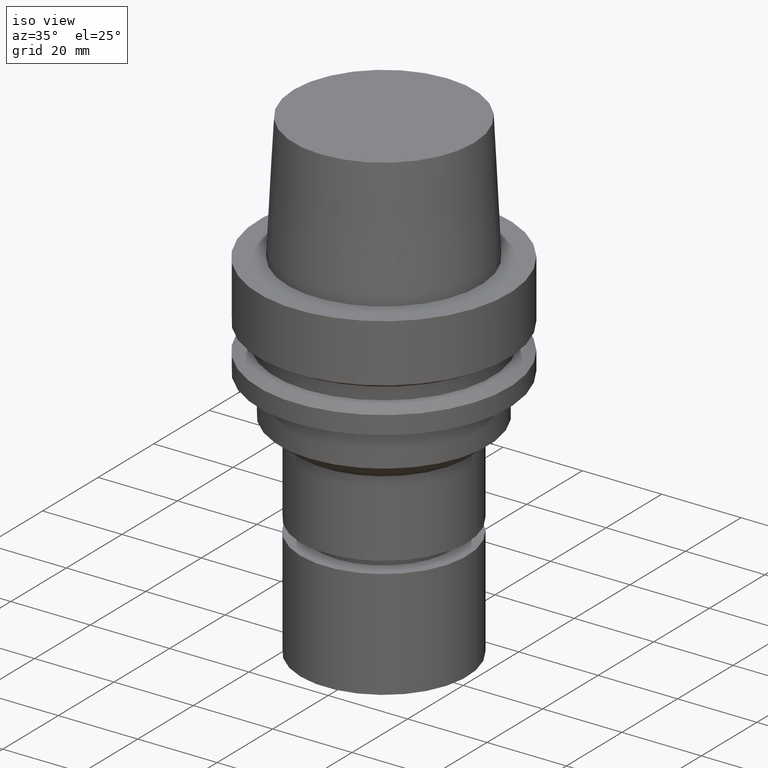
[diagram: clean part render]
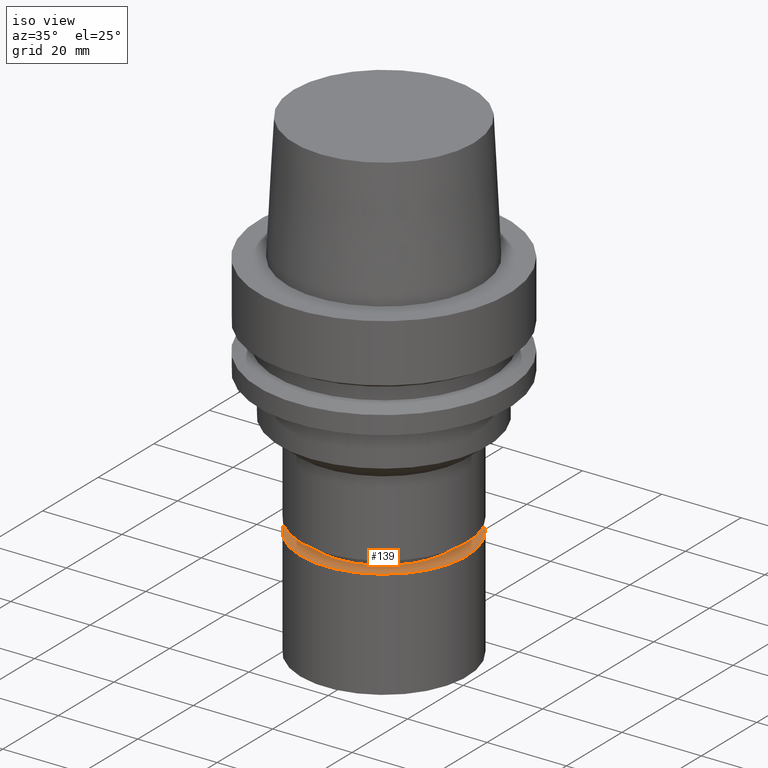
[diagram: same view with one face highlighted and labeled with its STEP entity id]
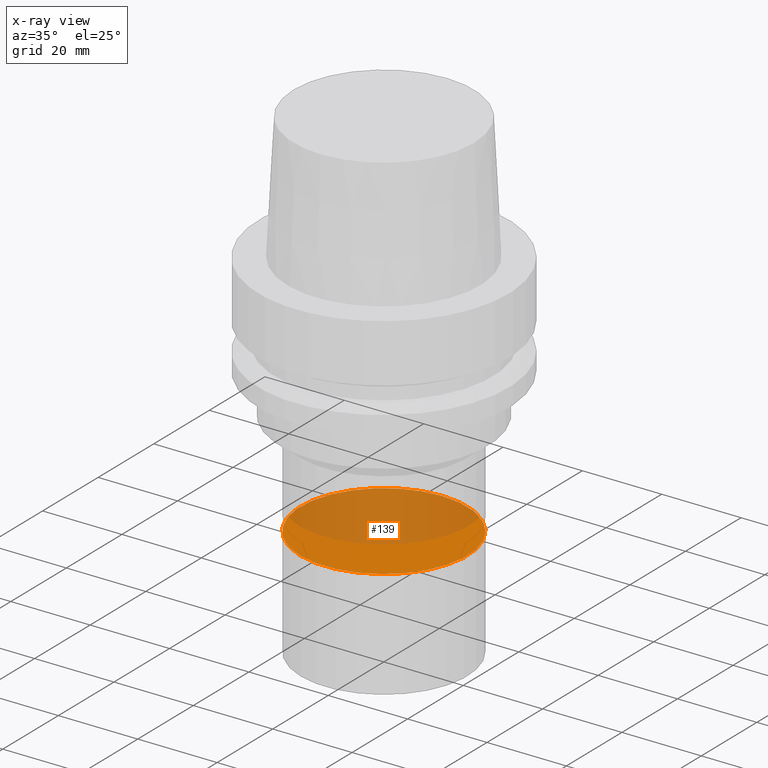
[diagram: x-ray of the same camera — body ghosted, the highlighted face saturated]
A machine part, iso view. The second image highlights one B-rep face of the part: STEP entity #139.
The next image is the same camera in x-ray: the body ghosted, the highlighted face saturated — about 57% of this face is hidden behind the body in this view.
In plain terms, the highlighted planar face has unit normal (-0, -0, 1).
Its self-contained STEP definition (entity closure, byte-faithful):
#139=ADVANCED_FACE('Unnamed[1]',(#308),#309,.T.);
#149=EDGE_CURVE('Unnamed[1]',#324,#324,#325,.T.);
#308=FACE_OUTER_BOUND('',#522,.T.);
#309=PLANE('',#523);
#324=VERTEX_POINT('',#542);
#325=CIRCLE('',#543,21.0);
#522=EDGE_LOOP('',(#733));
#523=AXIS2_PLACEMENT_3D('',#734,#735,#736);
#542=CARTESIAN_POINT('',(3.82702124733548E-015,21.0,-62.5));
#543=AXIS2_PLACEMENT_3D('',#752,#753,#754);
#733=ORIENTED_EDGE('',*,*,#149,.F.);
#734=CARTESIAN_POINT('',(3.82702124733548E-015,10.5,-62.5));
#735=DIRECTION('',(-6.12323399573677E-017,-1.22464679914735E-016,1.0));
#736=DIRECTION('',(1.23259516440783E-032,-1.0,-1.22464679914735E-016));
#752=CARTESIAN_POINT('',(3.82702124733548E-015,7.65404249467096E-015,-62.5));
#753=DIRECTION('',(6.12323399573677E-017,1.22464679914735E-016,-1.0));
#754=DIRECTION('',(-1.23259516440783E-032,1.0,1.22464679914735E-016));